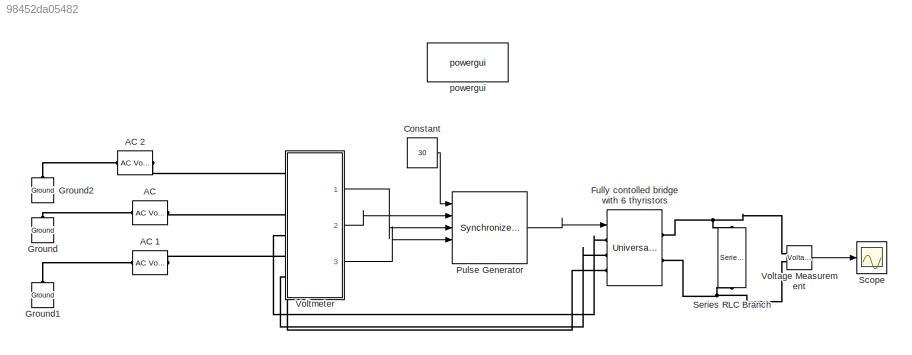
MODEL slx_98452da05482
KIND model
CONFIG AbsTol = auto
CONFIG EnableMultiTasking = off
CONFIG FixedStep = auto
CONFIG MaxStep = auto
CONFIG MinStep = auto
CONFIG RelTol = 1e-3
CONFIG SampleTimeConstraint = Unconstrained
CONFIG Solver = VariableStepAuto
CONFIG SolverName = VariableStepAuto
CONFIG StartTime = 0.0
CONFIG StopTime = 10.0
BLOCK [Reference] AC   REF=powerlib/Electrical
Sources/AC Voltage Source
  Ports = [0, 0, 0, 0, 0, 1, 1]
  SourceBlock = powerlib/Electrical\nSources/AC Voltage Source
  SourceProductBaseCode = PS
  SourceProductName = Simscape Electrical
  SourceType = AC Voltage Source
BLOCK [Reference] AC 1  REF=powerlib/Electrical
Sources/AC Voltage Source
  Ports = [0, 0, 0, 0, 0, 1, 1]
  SourceBlock = powerlib/Electrical\nSources/AC Voltage Source
  SourceProductBaseCode = PS
  SourceProductName = Simscape Electrical
  SourceType = AC Voltage Source
BLOCK [Reference] AC 2  REF=powerlib/Electrical
Sources/AC Voltage Source
  Ports = [0, 0, 0, 0, 0, 1, 1]
  SourceBlock = powerlib/Electrical\nSources/AC Voltage Source
  SourceProductBaseCode = PS
  SourceProductName = Simscape Electrical
  SourceType = AC Voltage Source
BLOCK [Constant] Constant
  Value = 30
BLOCK [Reference] Fully contolled bridge with 6 thyristors  REF=powerlib/Power
Electronics/Universal Bridge
  Ports = [1, 0, 0, 0, 0, 3, 2]
  SourceBlock = powerlib/Power\nElectronics/Universal Bridge
  SourceProductBaseCode = PS
  SourceProductName = Simscape Electrical
  SourceType = Universal Bridge
BLOCK [Reference] Ground  REF=powerlib/Elements/Ground
  Ports = [0, 0, 0, 0, 0, 1]
  SourceBlock = powerlib/Elements/Ground
  SourceProductBaseCode = PS
  SourceProductName = Simscape Electrical
  SourceType = Ground
BLOCK [Reference] Ground1  REF=powerlib/Elements/Ground
  Ports = [0, 0, 0, 0, 0, 1]
  SourceBlock = powerlib/Elements/Ground
  SourceProductBaseCode = PS
  SourceProductName = Simscape Electrical
  SourceType = Ground
BLOCK [Reference] Ground2  REF=powerlib/Elements/Ground
  Ports = [0, 0, 0, 0, 0, 1]
  SourceBlock = powerlib/Elements/Ground
  SourceProductBaseCode = PS
  SourceProductName = Simscape Electrical
  SourceType = Ground
BLOCK [Reference] Pulse Generator  REF=powerlib_extras/Control 
Blocks/Synchronized
6-Pulse Generator
  Ports = [5, 1]
  SourceBlock = powerlib_extras/Control \nBlocks/Synchronized\n6-Pulse Generator
  SourceType = Synchronized 6-pulse generator
BLOCK [Scope] Scope
  Floating = off
  NumInputPorts = 1
  Ports = [1]
  ScopeSpecificationString = Simulink.scopes.TimeScopeBlockCfg('CurrentConfiguration', extmgr.ConfigurationSet(extmgr.Configuration('Core','General UI',true),extmgr.Configuration('Core','Source UI',true),extmgr.Configuration('Sources','WiredSimulink',true),extmgr.Configuration('Visuals','Time Domain',true,'SerializedDisplays',{struct('MinYLimReal','327.50158','MaxYLimReal','703.86566','YLabelReal','','MinYLimMag','327.50158',...<+1425ch>
BLOCK [Reference] Series RLC Branch  REF=powerlib/Elements/Series RLC Branch
  Ports = [0, 0, 0, 0, 0, 1, 1]
  SourceBlock = powerlib/Elements/Series RLC Branch
  SourceProductBaseCode = PS
  SourceProductName = Simscape Power Systems
  SourceType = Series RLC Branch
BLOCK [Reference] Voltage Measurement  REF=powerlib/Measurements/Voltage Measurement
  Ports = [0, 1, 0, 0, 0, 2]
  SourceBlock = powerlib/Measurements/Voltage Measurement
  SourceProductBaseCode = PS
  SourceProductName = Simscape Power Systems
  SourceType = Voltage Measurement
  UserDataPersistent = on
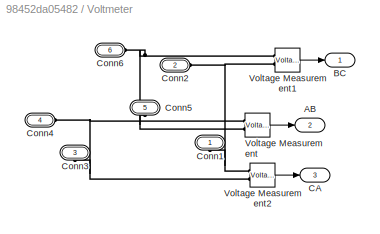
BLOCK [SubSystem] Voltmeter
  Ports = [0, 3, 0, 0, 0, 6]
  RequestExecContextInheritance = off
BLOCK [Outport] Voltmeter/AB
  IconDisplay = Port number
  Port = 2
BLOCK [Outport] Voltmeter/BC
  IconDisplay = Port number
BLOCK [Outport] Voltmeter/CA
  IconDisplay = Port number
  Port = 3
BLOCK [PMIOPort] Voltmeter/Conn1
  Side = Left
BLOCK [PMIOPort] Voltmeter/Conn2
  Port = 2
  Side = Left
BLOCK [PMIOPort] Voltmeter/Conn3
  Port = 3
  Side = Left
BLOCK [PMIOPort] Voltmeter/Conn4
  Port = 4
  Side = Left
BLOCK [PMIOPort] Voltmeter/Conn5
  Port = 5
  Side = Left
BLOCK [PMIOPort] Voltmeter/Conn6
  Port = 6
  Side = Left
BLOCK [Reference] Voltmeter/Voltage Measurement  REF=powerlib/Measurements/Voltage Measurement
  Ports = [0, 1, 0, 0, 0, 2]
  SourceBlock = powerlib/Measurements/Voltage Measurement
  SourceProductBaseCode = PS
  SourceProductName = Simscape Electrical
  SourceType = Voltage Measurement
BLOCK [Reference] Voltmeter/Voltage Measurement1  REF=powerlib/Measurements/Voltage Measurement
  Ports = [0, 1, 0, 0, 0, 2]
  SourceBlock = powerlib/Measurements/Voltage Measurement
  SourceProductBaseCode = PS
  SourceProductName = Simscape Electrical
  SourceType = Voltage Measurement
BLOCK [Reference] Voltmeter/Voltage Measurement2  REF=powerlib/Measurements/Voltage Measurement
  Ports = [0, 1, 0, 0, 0, 2]
  SourceBlock = powerlib/Measurements/Voltage Measurement
  SourceProductBaseCode = PS
  SourceProductName = Simscape Electrical
  SourceType = Voltage Measurement
BLOCK [Reference] powergui  REF=powerlib/powergui
  Ports = []
  Priority = 1
  SourceBlock = powerlib/powergui
  SourceProductBaseCode = PS
  SourceProductName = Simscape Power Systems
  SourceType = PSB option menu block
LINE Constant:1 -> Pulse Generator:1
LINE Pulse Generator:1 -> Fully contolled bridge with 6 thyristors:1
LINE Voltage Measurement:1 -> Scope:1
LINE Voltmeter/Voltage Measurement1:1 -> Voltmeter/BC:1
LINE Voltmeter/Voltage Measurement2:1 -> Voltmeter/CA:1
LINE Voltmeter/Voltage Measurement:1 -> Voltmeter/AB:1
LINE Voltmeter:1 -> Pulse Generator:3
LINE Voltmeter:2 -> Pulse Generator:2
LINE Voltmeter:3 -> Pulse Generator:4
PLINE AC 1:LConn1 -- Ground1:LConn1
PLINE AC 1:RConn1 -- Voltmeter:LConn5
PLINE AC 2:LConn1 -- Ground2:LConn1
PLINE AC 2:RConn1 -- Voltmeter:LConn1
PLINE AC :LConn1 -- Ground:LConn1
PLINE AC :RConn1 -- Voltmeter:LConn3
PLINE Fully contolled bridge with 6 thyristors:LConn1 -- Voltmeter:LConn4
PLINE Fully contolled bridge with 6 thyristors:LConn2 -- Voltmeter:LConn6
PLINE Fully contolled bridge with 6 thyristors:LConn3 -- Voltmeter:LConn2
PNET net1: Fully contolled bridge with 6 thyristors:RConn1 -- Series RLC Branch:LConn1 -- Voltage Measurement:LConn1
PNET net2: Fully contolled bridge with 6 thyristors:RConn2 -- Series RLC Branch:RConn1 -- Voltage Measurement:LConn2
PNET net3: Voltmeter/Conn1:RConn1 -- Voltmeter/Conn2:RConn1 -- Voltmeter/Voltage Measurement1:LConn2 -- Voltmeter/Voltage Measurement2:LConn1
PNET net4: Voltmeter/Conn3:RConn1 -- Voltmeter/Conn4:RConn1 -- Voltmeter/Voltage Measurement2:LConn2 -- Voltmeter/Voltage Measurement:LConn1
PNET net5: Voltmeter/Conn5:RConn1 -- Voltmeter/Conn6:RConn1 -- Voltmeter/Voltage Measurement1:LConn1 -- Voltmeter/Voltage Measurement:LConn2
note: PNET lines group multi-terminal physical nets as a canonical sorted terminal list (undirected conserving connections); 2-terminal nets keep the pairwise PLINE form
